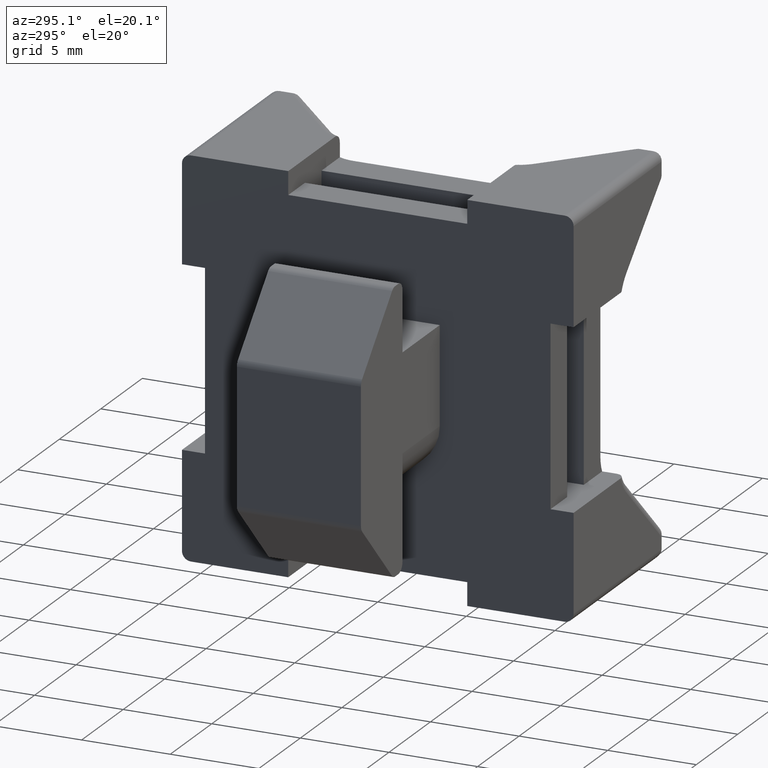
[diagram: clean part render]
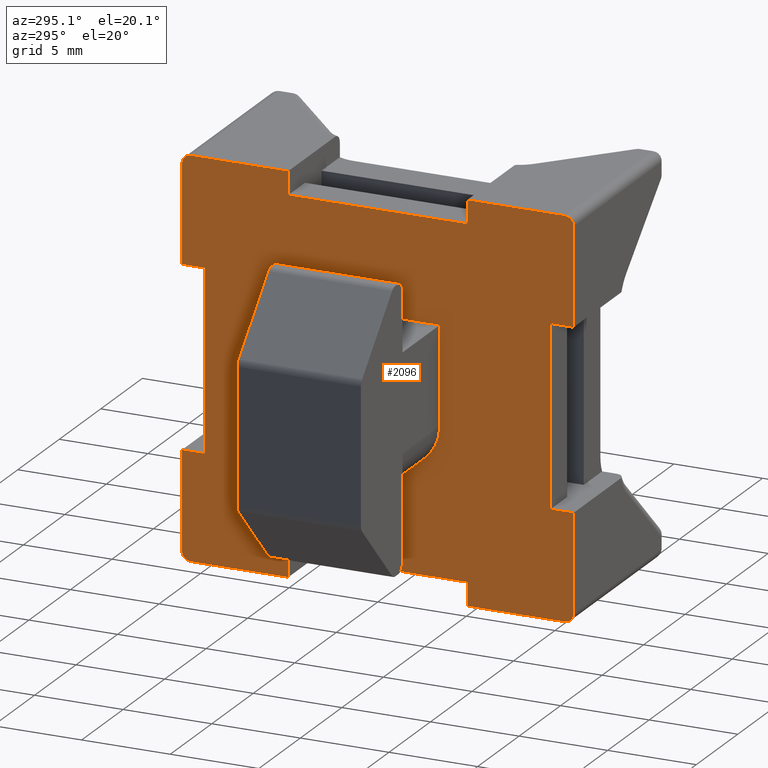
[diagram: same view with one face highlighted and labeled with its STEP entity id]
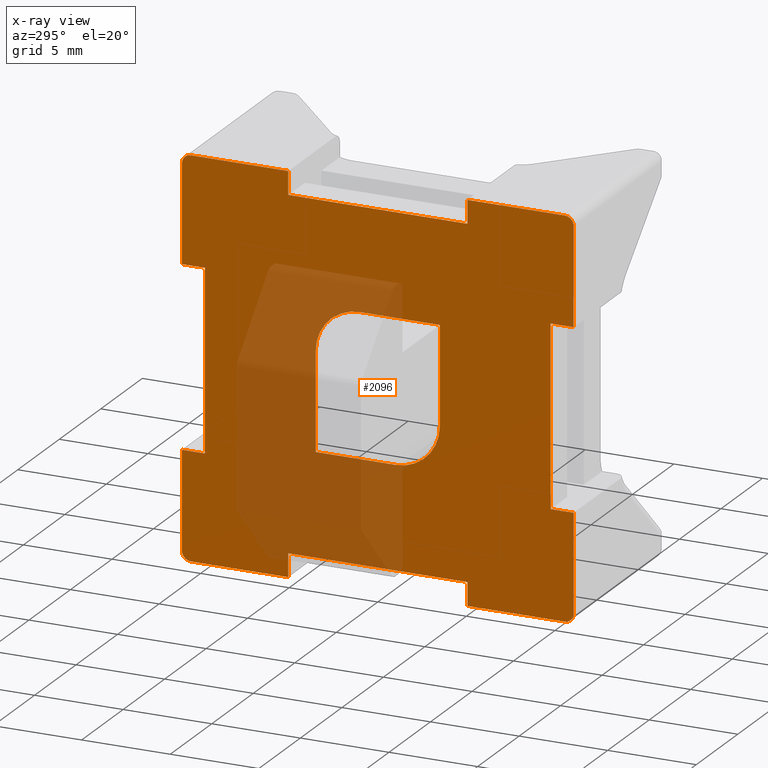
[diagram: x-ray of the same camera — body ghosted, the highlighted face saturated]
A machine part, auxiliary view. The second image highlights one B-rep face of the part: STEP entity #2096.
The next image is the same camera in x-ray: the body ghosted, the highlighted face saturated — about 27% of this face is hidden behind the body in this view.
In plain terms, the highlighted planar face has unit normal (-1, 0, 0).
Its self-contained STEP definition (entity closure, byte-faithful):
#15=FACE_BOUND('',#691,.T.);
#17=PLANE('',#2267);
#111=LINE('',#3259,#313);
#113=LINE('',#3263,#315);
#114=LINE('',#3265,#316);
#115=LINE('',#3267,#317);
#116=LINE('',#3269,#318);
#117=LINE('',#3271,#319);
#118=LINE('',#3275,#320);
#119=LINE('',#3277,#321);
#120=LINE('',#3279,#322);
#121=LINE('',#3281,#323);
#122=LINE('',#3283,#324);
#123=LINE('',#3287,#325);
#124=LINE('',#3289,#326);
#125=LINE('',#3291,#327);
#126=LINE('',#3293,#328);
#127=LINE('',#3295,#329);
#128=LINE('',#3299,#330);
#129=LINE('',#3301,#331);
#130=LINE('',#3303,#332);
#131=LINE('',#3304,#333);
#132=LINE('',#3307,#334);
#133=LINE('',#3311,#335);
#134=LINE('',#3313,#336);
#135=LINE('',#3316,#337);
#313=VECTOR('',#2557,10.);
#315=VECTOR('',#2561,10.);
#316=VECTOR('',#2562,10.);
#317=VECTOR('',#2563,10.);
#318=VECTOR('',#2564,10.);
#319=VECTOR('',#2565,10.);
#320=VECTOR('',#2568,10.);
#321=VECTOR('',#2569,10.);
#322=VECTOR('',#2570,10.);
#323=VECTOR('',#2571,10.);
#324=VECTOR('',#2572,10.);
#325=VECTOR('',#2575,10.);
#326=VECTOR('',#2576,10.);
#327=VECTOR('',#2577,10.);
#328=VECTOR('',#2578,10.);
#329=VECTOR('',#2579,10.);
#330=VECTOR('',#2582,10.);
#331=VECTOR('',#2583,10.);
#332=VECTOR('',#2584,10.);
#333=VECTOR('',#2585,10.);
#334=VECTOR('',#2586,10.);
#335=VECTOR('',#2589,10.);
#336=VECTOR('',#2590,10.);
#337=VECTOR('',#2593,10.);
#563=FACE_OUTER_BOUND('',#690,.T.);
#690=EDGE_LOOP('',(#1481,#1482,#1483,#1484,#1485,#1486,#1487,#1488,#1489,
#1490,#1491,#1492,#1493,#1494,#1495,#1496,#1497,#1498,#1499,#1500,#1501,
#1502,#1503,#1504));
#691=EDGE_LOOP('',(#1505,#1506,#1507,#1508,#1509,#1510));
#817=CIRCLE('',#2253,0.5);
#822=CIRCLE('',#2268,0.5);
#823=CIRCLE('',#2269,0.5);
#824=CIRCLE('',#2270,0.5);
#825=CIRCLE('',#2271,2.5);
#826=CIRCLE('',#2272,2.5);
#922=VERTEX_POINT('',#3193);
#923=VERTEX_POINT('',#3194);
#931=VERTEX_POINT('',#3258);
#932=VERTEX_POINT('',#3262);
#933=VERTEX_POINT('',#3264);
#934=VERTEX_POINT('',#3266);
#935=VERTEX_POINT('',#3268);
#936=VERTEX_POINT('',#3270);
#937=VERTEX_POINT('',#3272);
#938=VERTEX_POINT('',#3274);
#939=VERTEX_POINT('',#3276);
#940=VERTEX_POINT('',#3278);
#941=VERTEX_POINT('',#3280);
#942=VERTEX_POINT('',#3282);
#943=VERTEX_POINT('',#3284);
#944=VERTEX_POINT('',#3286);
#945=VERTEX_POINT('',#3288);
#946=VERTEX_POINT('',#3290);
#947=VERTEX_POINT('',#3292);
#948=VERTEX_POINT('',#3294);
#949=VERTEX_POINT('',#3296);
#950=VERTEX_POINT('',#3298);
#951=VERTEX_POINT('',#3300);
#952=VERTEX_POINT('',#3302);
#953=VERTEX_POINT('',#3305);
#954=VERTEX_POINT('',#3306);
#955=VERTEX_POINT('',#3308);
#956=VERTEX_POINT('',#3310);
#957=VERTEX_POINT('',#3312);
#958=VERTEX_POINT('',#3314);
#1118=EDGE_CURVE('',#922,#923,#817,.T.);
#1138=EDGE_CURVE('',#923,#931,#111,.T.);
#1140=EDGE_CURVE('',#932,#922,#113,.T.);
#1141=EDGE_CURVE('',#933,#932,#114,.T.);
#1142=EDGE_CURVE('',#933,#934,#115,.T.);
#1143=EDGE_CURVE('',#934,#935,#116,.T.);
#1144=EDGE_CURVE('',#935,#936,#117,.T.);
#1145=EDGE_CURVE('',#937,#936,#822,.T.);
#1146=EDGE_CURVE('',#937,#938,#118,.T.);
#1147=EDGE_CURVE('',#938,#939,#119,.T.);
#1148=EDGE_CURVE('',#940,#939,#120,.T.);
#1149=EDGE_CURVE('',#941,#940,#121,.T.);
#1150=EDGE_CURVE('',#942,#941,#122,.T.);
#1151=EDGE_CURVE('',#943,#942,#823,.T.);
#1152=EDGE_CURVE('',#944,#943,#123,.T.);
#1153=EDGE_CURVE('',#945,#944,#124,.T.);
#1154=EDGE_CURVE('',#945,#946,#125,.T.);
#1155=EDGE_CURVE('',#946,#947,#126,.T.);
#1156=EDGE_CURVE('',#947,#948,#127,.T.);
#1157=EDGE_CURVE('',#949,#948,#824,.T.);
#1158=EDGE_CURVE('',#949,#950,#128,.T.);
#1159=EDGE_CURVE('',#950,#951,#129,.T.);
#1160=EDGE_CURVE('',#952,#951,#130,.T.);
#1161=EDGE_CURVE('',#931,#952,#131,.T.);
#1162=EDGE_CURVE('',#953,#954,#132,.T.);
#1163=EDGE_CURVE('',#955,#954,#825,.F.);
#1164=EDGE_CURVE('',#955,#956,#133,.T.);
#1165=EDGE_CURVE('',#956,#957,#134,.T.);
#1166=EDGE_CURVE('',#958,#957,#826,.F.);
#1167=EDGE_CURVE('',#958,#953,#135,.T.);
#1481=ORIENTED_EDGE('',*,*,#1118,.F.);
#1482=ORIENTED_EDGE('',*,*,#1140,.F.);
#1483=ORIENTED_EDGE('',*,*,#1141,.F.);
#1484=ORIENTED_EDGE('',*,*,#1142,.T.);
#1485=ORIENTED_EDGE('',*,*,#1143,.T.);
#1486=ORIENTED_EDGE('',*,*,#1144,.T.);
#1487=ORIENTED_EDGE('',*,*,#1145,.F.);
#1488=ORIENTED_EDGE('',*,*,#1146,.T.);
#1489=ORIENTED_EDGE('',*,*,#1147,.T.);
#1490=ORIENTED_EDGE('',*,*,#1148,.F.);
#1491=ORIENTED_EDGE('',*,*,#1149,.F.);
#1492=ORIENTED_EDGE('',*,*,#1150,.F.);
#1493=ORIENTED_EDGE('',*,*,#1151,.F.);
#1494=ORIENTED_EDGE('',*,*,#1152,.F.);
#1495=ORIENTED_EDGE('',*,*,#1153,.F.);
#1496=ORIENTED_EDGE('',*,*,#1154,.T.);
#1497=ORIENTED_EDGE('',*,*,#1155,.T.);
#1498=ORIENTED_EDGE('',*,*,#1156,.T.);
#1499=ORIENTED_EDGE('',*,*,#1157,.F.);
#1500=ORIENTED_EDGE('',*,*,#1158,.T.);
#1501=ORIENTED_EDGE('',*,*,#1159,.T.);
#1502=ORIENTED_EDGE('',*,*,#1160,.F.);
#1503=ORIENTED_EDGE('',*,*,#1161,.F.);
#1504=ORIENTED_EDGE('',*,*,#1138,.F.);
#1505=ORIENTED_EDGE('',*,*,#1162,.T.);
#1506=ORIENTED_EDGE('',*,*,#1163,.F.);
#1507=ORIENTED_EDGE('',*,*,#1164,.T.);
#1508=ORIENTED_EDGE('',*,*,#1165,.T.);
#1509=ORIENTED_EDGE('',*,*,#1166,.F.);
#1510=ORIENTED_EDGE('',*,*,#1167,.T.);
#2096=ADVANCED_FACE('',(#563,#15),#17,.T.);
#2253=AXIS2_PLACEMENT_3D('',#3195,#2517,#2518);
#2267=AXIS2_PLACEMENT_3D('',#3261,#2559,#2560);
#2268=AXIS2_PLACEMENT_3D('',#3273,#2566,#2567);
#2269=AXIS2_PLACEMENT_3D('',#3285,#2573,#2574);
#2270=AXIS2_PLACEMENT_3D('',#3297,#2580,#2581);
#2271=AXIS2_PLACEMENT_3D('',#3309,#2587,#2588);
#2272=AXIS2_PLACEMENT_3D('',#3315,#2591,#2592);
#2517=DIRECTION('center_axis',(1.,0.,0.));
#2518=DIRECTION('ref_axis',(0.,-0.707106781186551,0.707106781186544));
#2557=DIRECTION('',(0.,0.,-1.));
#2559=DIRECTION('center_axis',(-1.,0.,0.));
#2560=DIRECTION('ref_axis',(0.,0.,1.));
#2561=DIRECTION('',(0.,-1.,0.));
#2562=DIRECTION('',(0.,0.,1.));
#2563=DIRECTION('',(0.,1.,0.));
#2564=DIRECTION('',(0.,0.,1.));
#2565=DIRECTION('',(0.,1.,0.));
#2566=DIRECTION('center_axis',(1.,0.,0.));
#2567=DIRECTION('ref_axis',(0.,0.707106781186551,0.707106781186544));
#2568=DIRECTION('',(0.,0.,-1.));
#2569=DIRECTION('',(0.,-1.,0.));
#2570=DIRECTION('',(0.,0.,1.));
#2571=DIRECTION('',(0.,-1.,0.));
#2572=DIRECTION('',(0.,0.,1.));
#2573=DIRECTION('center_axis',(1.,0.,0.));
#2574=DIRECTION('ref_axis',(0.,0.707106781186549,-0.707106781186546));
#2575=DIRECTION('',(0.,1.,0.));
#2576=DIRECTION('',(0.,0.,-1.));
#2577=DIRECTION('',(0.,-1.,0.));
#2578=DIRECTION('',(0.,0.,-1.));
#2579=DIRECTION('',(0.,-1.,0.));
#2580=DIRECTION('center_axis',(1.,0.,0.));
#2581=DIRECTION('ref_axis',(0.,-0.707106781186549,-0.707106781186546));
#2582=DIRECTION('',(0.,0.,1.));
#2583=DIRECTION('',(0.,1.,0.));
#2584=DIRECTION('',(0.,0.,-1.));
#2585=DIRECTION('',(0.,1.,0.));
#2586=DIRECTION('',(0.,0.,-1.));
#2587=DIRECTION('center_axis',(1.,0.,0.));
#2588=DIRECTION('ref_axis',(1.57009245868377E-16,-0.707106781186547,-0.707106781186547));
#2589=DIRECTION('',(0.,1.,0.));
#2590=DIRECTION('',(0.,0.,1.));
#2591=DIRECTION('center_axis',(1.,0.,0.));
#2592=DIRECTION('ref_axis',(0.,0.707106781186547,0.707106781186547));
#2593=DIRECTION('',(0.,-1.,0.));
#3193=CARTESIAN_POINT('',(0.,-10.55,20.8));
#3194=CARTESIAN_POINT('',(0.,-11.05,20.3));
#3195=CARTESIAN_POINT('Origin',(0.,-10.55,20.3));
#3258=CARTESIAN_POINT('',(0.,-11.05,14.8));
#3259=CARTESIAN_POINT('',(0.,-11.05,16.3));
#3261=CARTESIAN_POINT('Origin',(0.,0.,0.));
#3262=CARTESIAN_POINT('',(0.,-5.05,20.8));
#3263=CARTESIAN_POINT('',(0.,-9.55,20.8));
#3264=CARTESIAN_POINT('',(0.,-5.05,19.5));
#3265=CARTESIAN_POINT('',(0.,-5.05,19.3));
#3266=CARTESIAN_POINT('',(0.,5.05,19.5));
#3267=CARTESIAN_POINT('',(0.,0.,19.5));
#3268=CARTESIAN_POINT('',(0.,5.05,20.8));
#3269=CARTESIAN_POINT('',(0.,5.05,19.3));
#3270=CARTESIAN_POINT('',(0.,10.55,20.8));
#3271=CARTESIAN_POINT('',(0.,9.55,20.8));
#3272=CARTESIAN_POINT('',(0.,11.05,20.3));
#3273=CARTESIAN_POINT('Origin',(0.,10.55,20.3));
#3274=CARTESIAN_POINT('',(0.,11.05,14.8));
#3275=CARTESIAN_POINT('',(0.,11.05,16.3));
#3276=CARTESIAN_POINT('',(0.,9.75,14.8));
#3277=CARTESIAN_POINT('',(0.,6.55,14.8));
#3278=CARTESIAN_POINT('',(0.,9.75,4.7));
#3279=CARTESIAN_POINT('',(0.,9.75,0.));
#3280=CARTESIAN_POINT('',(0.,11.05,4.7));
#3281=CARTESIAN_POINT('',(0.,6.55,4.7));
#3282=CARTESIAN_POINT('',(0.,11.05,-0.799999999999999));
#3283=CARTESIAN_POINT('',(0.,11.05,3.2));
#3284=CARTESIAN_POINT('',(0.,10.55,-1.3));
#3285=CARTESIAN_POINT('Origin',(0.,10.55,-0.799999999999999));
#3286=CARTESIAN_POINT('',(0.,5.05,-1.3));
#3287=CARTESIAN_POINT('',(0.,9.55,-1.3));
#3288=CARTESIAN_POINT('',(0.,5.05,0.));
#3289=CARTESIAN_POINT('',(0.,5.05,0.2));
#3290=CARTESIAN_POINT('',(0.,-5.05,0.));
#3291=CARTESIAN_POINT('',(0.,0.,0.));
#3292=CARTESIAN_POINT('',(0.,-5.05,-1.3));
#3293=CARTESIAN_POINT('',(0.,-5.05,0.2));
#3294=CARTESIAN_POINT('',(0.,-10.55,-1.3));
#3295=CARTESIAN_POINT('',(0.,-9.55,-1.3));
#3296=CARTESIAN_POINT('',(0.,-11.05,-0.799999999999999));
#3297=CARTESIAN_POINT('Origin',(0.,-10.55,-0.799999999999999));
#3298=CARTESIAN_POINT('',(0.,-11.05,4.7));
#3299=CARTESIAN_POINT('',(0.,-11.05,3.2));
#3300=CARTESIAN_POINT('',(0.,-9.75,4.7));
#3301=CARTESIAN_POINT('',(0.,-6.55,4.7));
#3302=CARTESIAN_POINT('',(0.,-9.75,14.8));
#3303=CARTESIAN_POINT('',(0.,-9.75,0.));
#3304=CARTESIAN_POINT('',(0.,-6.55,14.8));
#3305=CARTESIAN_POINT('',(0.,-3.5,13.75));
#3306=CARTESIAN_POINT('',(0.,-3.5,8.25));
#3307=CARTESIAN_POINT('',(0.,-3.5,4.875));
#3308=CARTESIAN_POINT('',(0.,-1.,5.75));
#3309=CARTESIAN_POINT('Origin',(-1.94289029309402E-15,-1.,8.25));
#3310=CARTESIAN_POINT('',(0.,3.5,5.75));
#3311=CARTESIAN_POINT('',(0.,0.,5.75));
#3312=CARTESIAN_POINT('',(0.,3.5,11.25));
#3313=CARTESIAN_POINT('',(0.,3.5,4.875));
#3314=CARTESIAN_POINT('',(0.,1.,13.75));
#3315=CARTESIAN_POINT('Origin',(0.,1.,11.25));
#3316=CARTESIAN_POINT('',(0.,0.,13.75));